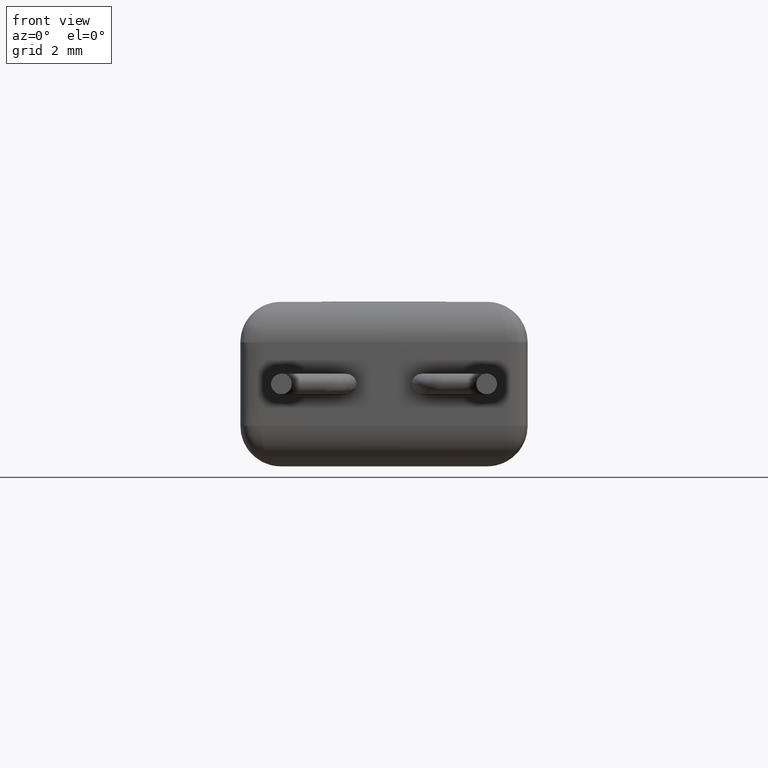
[diagram: clean part render]
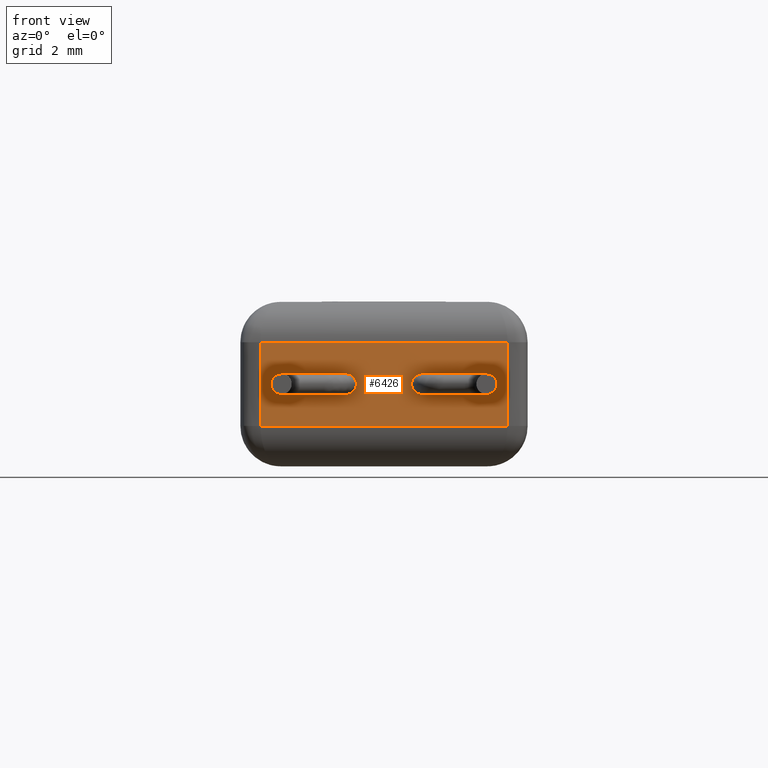
[diagram: same view with one face highlighted and labeled with its STEP entity id]
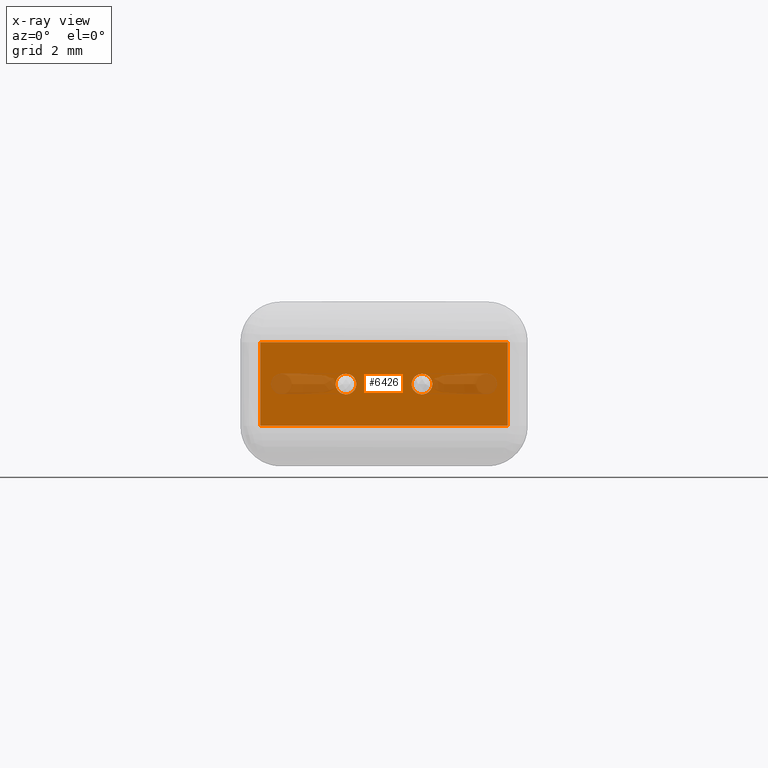
[diagram: x-ray of the same camera — body ghosted, the highlighted face saturated]
A machine part, front view. The second image highlights one B-rep face of the part: STEP entity #6426.
The next image is the same camera in x-ray: the body ghosted, the highlighted face saturated — about 11% of this face is hidden behind the body in this view.
In plain terms, the highlighted planar face has unit normal (0, 1, 0).
Its self-contained STEP definition (entity closure, byte-faithful):
#85 = CARTESIAN_POINT ( 'NONE',  ( 0.5000000000000000000, 0.0000000000000000000, 1.000000000000014000 ) ) ;
#146 = DIRECTION ( 'NONE',  ( 0.0000000000000000000, -0.0000000000000000000, 1.000000000000000000 ) ) ;
#346 = CARTESIAN_POINT ( 'NONE',  ( 6.609999999999999400, 0.0000000000000000000, 3.070000000000000700 ) ) ;
#360 = VERTEX_POINT ( 'NONE', #1863 ) ;
#528 = VERTEX_POINT ( 'NONE', #346 ) ;
#533 = VERTEX_POINT ( 'NONE', #4479 ) ;
#669 = CARTESIAN_POINT ( 'NONE',  ( 4.494999999999999200, 0.0000000000000000000, 2.035000000000000100 ) ) ;
#841 = LINE ( 'NONE', #1545, #5517 ) ;
#916 = FACE_BOUND ( 'NONE', #4396, .T. ) ;
#1188 = VERTEX_POINT ( 'NONE', #1309 ) ;
#1265 = CARTESIAN_POINT ( 'NONE',  ( 4.494999999999999200, 0.0000000000000000000, 2.290000000000000500 ) ) ;
#1301 = CARTESIAN_POINT ( 'NONE',  ( 2.615000000000000700, 0.0000000000000000000, 1.780000000000000200 ) ) ;
#1309 = CARTESIAN_POINT ( 'NONE',  ( 0.5000000000000000000, 0.0000000000000000000, 3.070000000000002100 ) ) ;
#1356 = EDGE_CURVE ( 'NONE', #1188, #2148, #6188, .T. ) ;
#1358 = AXIS2_PLACEMENT_3D ( 'NONE', #2196, #4284, #146 ) ;
#1361 = ORIENTED_EDGE ( 'NONE', *, *, #5843, .F. ) ;
#1400 = CARTESIAN_POINT ( 'NONE',  ( 0.5000000000000000000, 0.0000000000000000000, 1.000000000000014000 ) ) ;
#1545 = CARTESIAN_POINT ( 'NONE',  ( 6.609999999999999400, 0.0000000000000000000, 1.000000000000000000 ) ) ;
#1602 = AXIS2_PLACEMENT_3D ( 'NONE', #669, #4188, #5787 ) ;
#1648 = EDGE_CURVE ( 'NONE', #5294, #6496, #3311, .T. ) ;
#1687 = PLANE ( 'NONE',  #1358 ) ;
#1763 = AXIS2_PLACEMENT_3D ( 'NONE', #6300, #4660, #3685 ) ;
#1782 = DIRECTION ( 'NONE',  ( 0.0000000000000000000, 0.0000000000000000000, -1.000000000000000000 ) ) ;
#1863 = CARTESIAN_POINT ( 'NONE',  ( 6.609999999999999400, 0.0000000000000000000, 1.000000000000000000 ) ) ;
#1878 = CARTESIAN_POINT ( 'NONE',  ( 6.609999999999999400, 0.0000000000000000000, 2.380000000000000300 ) ) ;
#2094 = ORIENTED_EDGE ( 'NONE', *, *, #3283, .T. ) ;
#2146 = CIRCLE ( 'NONE', #1763, 0.2550000000000000000 ) ;
#2148 = VERTEX_POINT ( 'NONE', #85 ) ;
#2196 = CARTESIAN_POINT ( 'NONE',  ( 0.0000000000000000000, 0.0000000000000000000, 4.070000000000000300 ) ) ;
#2359 = EDGE_CURVE ( 'NONE', #528, #1188, #3056, .T. ) ;
#2390 = CARTESIAN_POINT ( 'NONE',  ( 6.609999999999999400, 0.0000000000000000000, 3.070000000000000700 ) ) ;
#2413 = VERTEX_POINT ( 'NONE', #1301 ) ;
#2452 = EDGE_CURVE ( 'NONE', #360, #528, #2764, .T. ) ;
#2764 = B_SPLINE_CURVE_WITH_KNOTS ( 'NONE', 3,
 ( #3870, #4910, #1878, #2390 ),
 .UNSPECIFIED., .F., .F.,
 ( 4, 4 ),
 ( 0.2457002457002456500, 0.7542997542997543800 ),
 .UNSPECIFIED. ) ;
#2879 = DIRECTION ( 'NONE',  ( -1.000000000000000000, 0.0000000000000000000, -0.0000000000000000000 ) ) ;
#3000 = DIRECTION ( 'NONE',  ( 0.0000000000000000000, 0.0000000000000000000, 1.000000000000000000 ) ) ;
#3056 = LINE ( 'NONE', #5961, #5531 ) ;
#3128 = DIRECTION ( 'NONE',  ( -0.0000000000000000000, 1.000000000000000000, -0.0000000000000000000 ) ) ;
#3201 = CARTESIAN_POINT ( 'NONE',  ( 4.494999999999999200, 0.0000000000000000000, 2.035000000000000100 ) ) ;
#3283 = EDGE_CURVE ( 'NONE', #2148, #360, #841, .T. ) ;
#3311 = CIRCLE ( 'NONE', #1602, 0.2550000000000000000 ) ;
#3441 = AXIS2_PLACEMENT_3D ( 'NONE', #6075, #6019, #3000 ) ;
#3679 = EDGE_LOOP ( 'NONE', ( #5398, #2094, #5357, #6681 ) ) ;
#3685 = DIRECTION ( 'NONE',  ( 0.0000000000000000000, 0.0000000000000000000, 1.000000000000000000 ) ) ;
#3866 = EDGE_CURVE ( 'NONE', #6496, #5294, #4787, .T. ) ;
#3870 = CARTESIAN_POINT ( 'NONE',  ( 6.609999999999999400, 0.0000000000000000000, 1.000000000000000000 ) ) ;
#4188 = DIRECTION ( 'NONE',  ( -0.0000000000000000000, 1.000000000000000000, -0.0000000000000000000 ) ) ;
#4223 = FACE_BOUND ( 'NONE', #4506, .T. ) ;
#4284 = DIRECTION ( 'NONE',  ( 0.0000000000000000000, 1.000000000000000000, 0.0000000000000000000 ) ) ;
#4396 = EDGE_LOOP ( 'NONE', ( #1361, #5721 ) ) ;
#4479 = CARTESIAN_POINT ( 'NONE',  ( 2.615000000000000700, 0.0000000000000000000, 2.290000000000000500 ) ) ;
#4488 = CARTESIAN_POINT ( 'NONE',  ( 0.5000000000000000000, 0.0000000000000000000, 3.070000000000002100 ) ) ;
#4506 = EDGE_LOOP ( 'NONE', ( #4735, #6521 ) ) ;
#4660 = DIRECTION ( 'NONE',  ( -0.0000000000000000000, -1.000000000000000000, -0.0000000000000000000 ) ) ;
#4735 = ORIENTED_EDGE ( 'NONE', *, *, #1648, .T. ) ;
#4787 = CIRCLE ( 'NONE', #5565, 0.2550000000000000000 ) ;
#4850 = CARTESIAN_POINT ( 'NONE',  ( 4.494999999999999200, 0.0000000000000000000, 1.780000000000000200 ) ) ;
#4910 = CARTESIAN_POINT ( 'NONE',  ( 6.609999999999999400, 0.0000000000000000000, 1.690000000000000400 ) ) ;
#5294 = VERTEX_POINT ( 'NONE', #1265 ) ;
#5357 = ORIENTED_EDGE ( 'NONE', *, *, #2452, .T. ) ;
#5398 = ORIENTED_EDGE ( 'NONE', *, *, #1356, .T. ) ;
#5517 = VECTOR ( 'NONE', #5606, 1000.000000000000000 ) ;
#5531 = VECTOR ( 'NONE', #2879, 1000.000000000000000 ) ;
#5565 = AXIS2_PLACEMENT_3D ( 'NONE', #3201, #3128, #1782 ) ;
#5606 = DIRECTION ( 'NONE',  ( 1.000000000000000000, -0.0000000000000000000, 0.0000000000000000000 ) ) ;
#5721 = ORIENTED_EDGE ( 'NONE', *, *, #6498, .F. ) ;
#5787 = DIRECTION ( 'NONE',  ( 0.0000000000000000000, 0.0000000000000000000, -1.000000000000000000 ) ) ;
#5843 = EDGE_CURVE ( 'NONE', #533, #2413, #2146, .T. ) ;
#5961 = CARTESIAN_POINT ( 'NONE',  ( 0.0000000000000000000, 0.0000000000000000000, 3.070000000000000700 ) ) ;
#6019 = DIRECTION ( 'NONE',  ( -0.0000000000000000000, -1.000000000000000000, -0.0000000000000000000 ) ) ;
#6061 = CARTESIAN_POINT ( 'NONE',  ( 0.5000000000000000000, 0.0000000000000000000, 2.380000000000005700 ) ) ;
#6075 = CARTESIAN_POINT ( 'NONE',  ( 2.615000000000000700, 0.0000000000000000000, 2.035000000000000100 ) ) ;
#6078 = FACE_OUTER_BOUND ( 'NONE', #3679, .T. ) ;
#6082 = CARTESIAN_POINT ( 'NONE',  ( 0.5000000000000000000, 0.0000000000000000000, 1.690000000000010200 ) ) ;
#6188 = B_SPLINE_CURVE_WITH_KNOTS ( 'NONE', 3,
 ( #4488, #6061, #6082, #1400 ),
 .UNSPECIFIED., .F., .F.,
 ( 4, 4 ),
 ( 0.2457002457002454600, 0.7542997542997509400 ),
 .UNSPECIFIED. ) ;
#6300 = CARTESIAN_POINT ( 'NONE',  ( 2.615000000000000700, 0.0000000000000000000, 2.035000000000000100 ) ) ;
#6426 = ADVANCED_FACE ( 'NONE', ( #4223, #6078, #916 ), #1687, .F. ) ;
#6473 = CIRCLE ( 'NONE', #3441, 0.2550000000000000000 ) ;
#6496 = VERTEX_POINT ( 'NONE', #4850 ) ;
#6498 = EDGE_CURVE ( 'NONE', #2413, #533, #6473, .T. ) ;
#6521 = ORIENTED_EDGE ( 'NONE', *, *, #3866, .T. ) ;
#6681 = ORIENTED_EDGE ( 'NONE', *, *, #2359, .T. ) ;